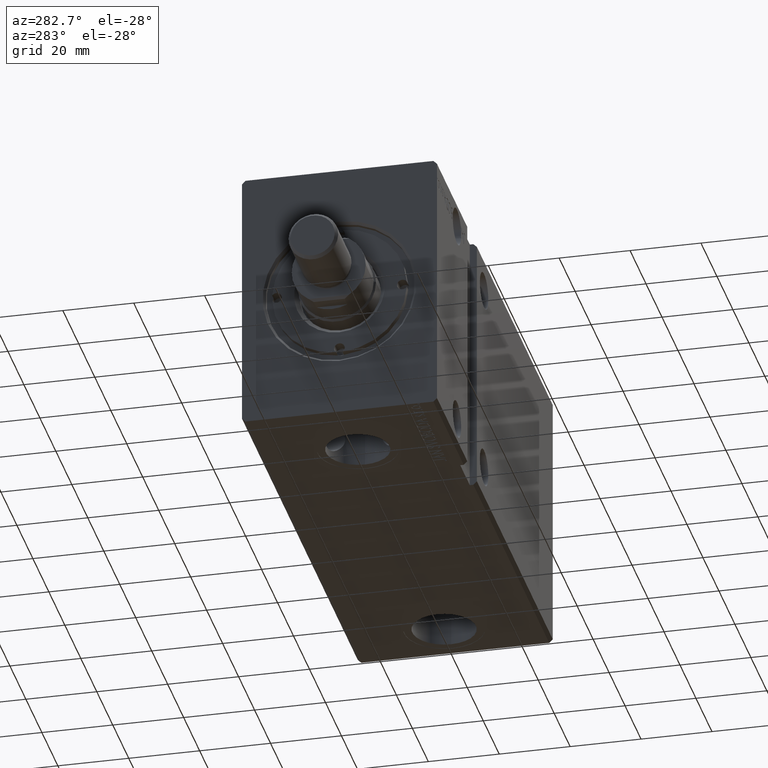
[diagram: clean part render]
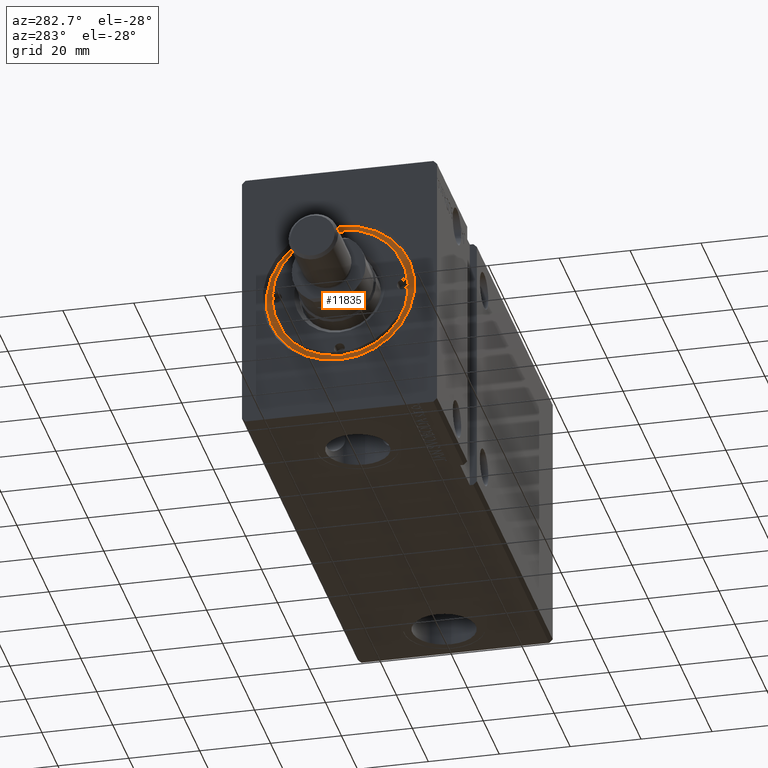
[diagram: same view with one face highlighted and labeled with its STEP entity id]
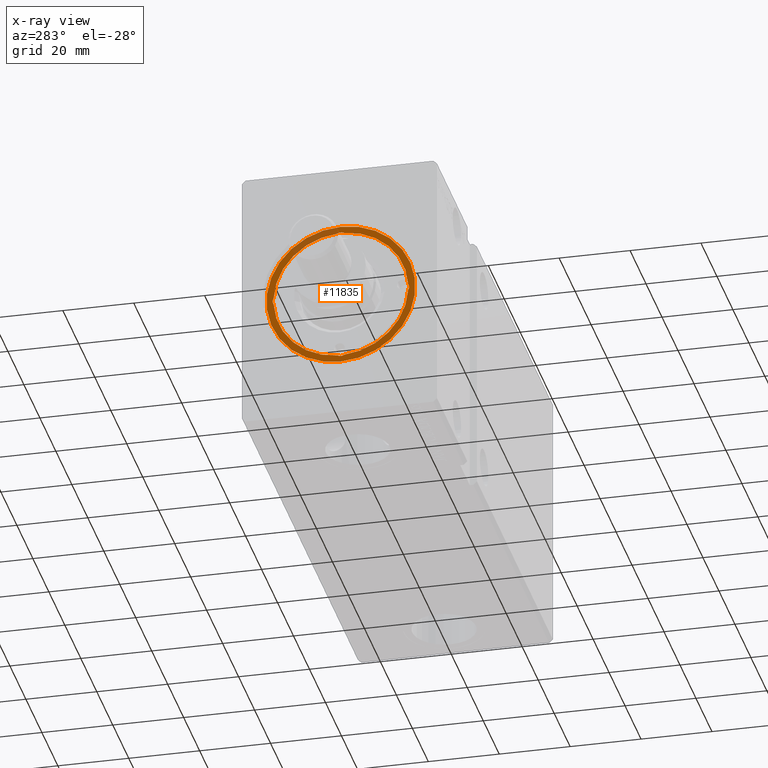
[diagram: x-ray of the same camera — body ghosted, the highlighted face saturated]
A machine part, auxiliary view. The second image highlights one B-rep face of the part: STEP entity #11835.
The next image is the same camera in x-ray: the body ghosted, the highlighted face saturated — about 11% of this face is hidden behind the body in this view.
In plain terms, the highlighted planar face has unit normal (-1, 0, 0).
Its self-contained STEP definition (entity closure, byte-faithful):
#230 = VERTEX_POINT ( 'NONE', #5184 ) ;
#501 = AXIS2_PLACEMENT_3D ( 'NONE', #7721, #8510, #11138 ) ;
#576 = AXIS2_PLACEMENT_3D ( 'NONE', #13906, #8258, #1399 ) ;
#1134 = DIRECTION ( 'NONE',  ( 1.000000000000000000, 0.000000000000000000, 0.000000000000000000 ) ) ;
#1399 = DIRECTION ( 'NONE',  ( 1.000000000000000000, 0.000000000000000000, -0.000000000000000000 ) ) ;
#2267 = VERTEX_POINT ( 'NONE', #24698 ) ;
#2274 = CIRCLE ( 'NONE', #20948, 21.00000000000000000 ) ;
#2510 = AXIS2_PLACEMENT_3D ( 'NONE', #13652, #38321, #1134 ) ;
#3570 = CARTESIAN_POINT ( 'NONE',  ( -18.98063380281690016, -0.8576365450261759227, 10.00000000000000000 ) ) ;
#4413 = CARTESIAN_POINT ( 'NONE',  ( -0.8576365450261883572, -18.98063380281690016, 10.00000000000000000 ) ) ;
#4491 = DIRECTION ( 'NONE',  ( 0.000000000000000000, 0.000000000000000000, 1.000000000000000000 ) ) ;
#5106 = EDGE_CURVE ( 'NONE', #6022, #30621, #15314, .T. ) ;
#5184 = CARTESIAN_POINT ( 'NONE',  ( -21.00000000000000000, 0.000000000000000000, 10.00000000000000000 ) ) ;
#5224 = CARTESIAN_POINT ( 'NONE',  ( -0.8576365450261766998, 18.98063380281690016, 10.00000000000000000 ) ) ;
#5456 = EDGE_CURVE ( 'NONE', #33972, #2267, #12141, .T. ) ;
#6022 = VERTEX_POINT ( 'NONE', #17647 ) ;
#6041 = AXIS2_PLACEMENT_3D ( 'NONE', #36371, #6270, #24647 ) ;
#6270 = DIRECTION ( 'NONE',  ( 0.000000000000000000, 0.000000000000000000, 1.000000000000000000 ) ) ;
#7172 = ORIENTED_EDGE ( 'NONE', *, *, #27861, .T. ) ;
#7721 = CARTESIAN_POINT ( 'NONE',  ( 0.000000000000000000, 0.000000000000000000, 10.00000000000000000 ) ) ;
#8083 = CIRCLE ( 'NONE', #25480, 19.00000000000000000 ) ;
#8197 = CARTESIAN_POINT ( 'NONE',  ( 0.8576365450261748125, -18.98063380281690016, 10.00000000000000000 ) ) ;
#8258 = DIRECTION ( 'NONE',  ( 0.000000000000000000, 0.000000000000000000, 1.000000000000000000 ) ) ;
#8510 = DIRECTION ( 'NONE',  ( 0.000000000000000000, 0.000000000000000000, 1.000000000000000000 ) ) ;
#8630 = CIRCLE ( 'NONE', #31855, 19.00000000000000000 ) ;
#8894 = AXIS2_PLACEMENT_3D ( 'NONE', #9127, #21234, #27509 ) ;
#9127 = CARTESIAN_POINT ( 'NONE',  ( 0.000000000000000000, 17.75000000000000000, 10.00000000000000000 ) ) ;
#9216 = VERTEX_POINT ( 'NONE', #11147 ) ;
#9377 = VERTEX_POINT ( 'NONE', #22613 ) ;
#10602 = DIRECTION ( 'NONE',  ( 1.000000000000000000, 0.000000000000000000, 0.000000000000000000 ) ) ;
#10838 = CIRCLE ( 'NONE', #501, 21.00000000000000000 ) ;
#11138 = DIRECTION ( 'NONE',  ( 1.000000000000000000, 0.000000000000000000, 0.000000000000000000 ) ) ;
#11147 = CARTESIAN_POINT ( 'NONE',  ( -19.24999999999999645, 1.836970198721027222E-16, 10.00000000000000000 ) ) ;
#11300 = DIRECTION ( 'NONE',  ( 0.000000000000000000, 0.000000000000000000, 1.000000000000000000 ) ) ;
#11696 = DIRECTION ( 'NONE',  ( 0.000000000000000000, 0.000000000000000000, 1.000000000000000000 ) ) ;
#11835 = ADVANCED_FACE ( 'NONE', ( #32100, #14502 ), #29675, .T. ) ;
#11841 = ORIENTED_EDGE ( 'NONE', *, *, #35560, .T. ) ;
#11869 = EDGE_CURVE ( 'NONE', #9216, #18587, #36697, .T. ) ;
#12051 = ORIENTED_EDGE ( 'NONE', *, *, #33370, .F. ) ;
#12141 = CIRCLE ( 'NONE', #17267, 1.499999999999997780 ) ;
#12390 = ORIENTED_EDGE ( 'NONE', *, *, #21143, .F. ) ;
#13198 = CARTESIAN_POINT ( 'NONE',  ( 19.24999999999999645, 0.000000000000000000, 10.00000000000000000 ) ) ;
#13282 = ORIENTED_EDGE ( 'NONE', *, *, #26358, .F. ) ;
#13652 = CARTESIAN_POINT ( 'NONE',  ( 0.000000000000000000, 0.000000000000000000, 10.00000000000000000 ) ) ;
#13906 = CARTESIAN_POINT ( 'NONE',  ( 0.000000000000000000, 0.000000000000000000, 10.00000000000000000 ) ) ;
#14436 = ORIENTED_EDGE ( 'NONE', *, *, #5106, .F. ) ;
#14502 = FACE_OUTER_BOUND ( 'NONE', #23835, .T. ) ;
#14632 = EDGE_LOOP ( 'NONE', ( #21698, #24930, #14436, #12390, #28737, #12051, #19723, #13282, #34606, #27959 ) ) ;
#15122 = AXIS2_PLACEMENT_3D ( 'NONE', #18746, #25025, #18550 ) ;
#15314 = CIRCLE ( 'NONE', #8894, 1.499999999999996891 ) ;
#15778 = CARTESIAN_POINT ( 'NONE',  ( 17.75000000000000000, 0.000000000000000000, 10.00000000000000000 ) ) ;
#16318 = CIRCLE ( 'NONE', #6041, 1.499999999999997780 ) ;
#16366 = DIRECTION ( 'NONE',  ( 1.000000000000000000, 0.000000000000000000, 0.000000000000000000 ) ) ;
#17267 = AXIS2_PLACEMENT_3D ( 'NONE', #39585, #11696, #18143 ) ;
#17647 = CARTESIAN_POINT ( 'NONE',  ( 0.8576365450261883572, 18.98063380281690016, 10.00000000000000000 ) ) ;
#17763 = CARTESIAN_POINT ( 'NONE',  ( 18.98063380281690016, -0.8576365450261883572, 10.00000000000000000 ) ) ;
#18143 = DIRECTION ( 'NONE',  ( 1.000000000000000000, 0.000000000000000000, 0.000000000000000000 ) ) ;
#18550 = DIRECTION ( 'NONE',  ( 1.000000000000000000, 0.000000000000000000, 0.000000000000000000 ) ) ;
#18587 = VERTEX_POINT ( 'NONE', #3570 ) ;
#18746 = CARTESIAN_POINT ( 'NONE',  ( 0.000000000000000000, -17.75000000000000000, 10.00000000000000000 ) ) ;
#18996 = DIRECTION ( 'NONE',  ( 0.000000000000000000, 0.000000000000000000, 1.000000000000000000 ) ) ;
#19239 = AXIS2_PLACEMENT_3D ( 'NONE', #23605, #26045, #32898 ) ;
#19383 = EDGE_CURVE ( 'NONE', #36953, #9216, #16318, .T. ) ;
#19723 = ORIENTED_EDGE ( 'NONE', *, *, #31474, .F. ) ;
#19908 = CIRCLE ( 'NONE', #2510, 19.00000000000000000 ) ;
#20948 = AXIS2_PLACEMENT_3D ( 'NONE', #39389, #11300, #35758 ) ;
#21062 = CIRCLE ( 'NONE', #34615, 1.499999999999997780 ) ;
#21143 = EDGE_CURVE ( 'NONE', #2267, #6022, #8630, .T. ) ;
#21234 = DIRECTION ( 'NONE',  ( 0.000000000000000000, 0.000000000000000000, 1.000000000000000000 ) ) ;
#21698 = ORIENTED_EDGE ( 'NONE', *, *, #19383, .F. ) ;
#22613 = CARTESIAN_POINT ( 'NONE',  ( 21.00000000000000000, 2.571758278209441661E-15, 10.00000000000000000 ) ) ;
#23519 = CARTESIAN_POINT ( 'NONE',  ( 0.000000000000000000, 0.000000000000000000, 10.00000000000000000 ) ) ;
#23605 = CARTESIAN_POINT ( 'NONE',  ( -17.75000000000000000, 0.000000000000000000, 10.00000000000000000 ) ) ;
#23640 = CIRCLE ( 'NONE', #37197, 19.00000000000000000 ) ;
#23835 = EDGE_LOOP ( 'NONE', ( #11841, #7172 ) ) ;
#24180 = EDGE_CURVE ( 'NONE', #18587, #28800, #8083, .T. ) ;
#24647 = DIRECTION ( 'NONE',  ( 1.000000000000000000, 0.000000000000000000, 0.000000000000000000 ) ) ;
#24698 = CARTESIAN_POINT ( 'NONE',  ( 18.98063380281690016, 0.8576365450261821399, 10.00000000000000000 ) ) ;
#24930 = ORIENTED_EDGE ( 'NONE', *, *, #38707, .F. ) ;
#25004 = CARTESIAN_POINT ( 'NONE',  ( 0.000000000000000000, 0.000000000000000000, 10.00000000000000000 ) ) ;
#25025 = DIRECTION ( 'NONE',  ( 0.000000000000000000, 0.000000000000000000, 1.000000000000000000 ) ) ;
#25480 = AXIS2_PLACEMENT_3D ( 'NONE', #25004, #31060, #37334 ) ;
#26045 = DIRECTION ( 'NONE',  ( 0.000000000000000000, 0.000000000000000000, 1.000000000000000000 ) ) ;
#26358 = EDGE_CURVE ( 'NONE', #28800, #30939, #29950, .T. ) ;
#27509 = DIRECTION ( 'NONE',  ( 1.000000000000000000, 0.000000000000000000, 0.000000000000000000 ) ) ;
#27861 = EDGE_CURVE ( 'NONE', #9377, #230, #2274, .T. ) ;
#27959 = ORIENTED_EDGE ( 'NONE', *, *, #11869, .F. ) ;
#28313 = DIRECTION ( 'NONE',  ( 1.000000000000000000, 0.000000000000000000, 0.000000000000000000 ) ) ;
#28506 = CARTESIAN_POINT ( 'NONE',  ( 0.000000000000000000, 0.000000000000000000, 10.00000000000000000 ) ) ;
#28737 = ORIENTED_EDGE ( 'NONE', *, *, #5456, .F. ) ;
#28800 = VERTEX_POINT ( 'NONE', #4413 ) ;
#29675 = PLANE ( 'NONE',  #576 ) ;
#29950 = CIRCLE ( 'NONE', #15122, 1.499999999999996891 ) ;
#29974 = CARTESIAN_POINT ( 'NONE',  ( -18.98063380281690016, 0.8576365450261883572, 10.00000000000000000 ) ) ;
#30229 = VERTEX_POINT ( 'NONE', #17763 ) ;
#30621 = VERTEX_POINT ( 'NONE', #5224 ) ;
#30939 = VERTEX_POINT ( 'NONE', #8197 ) ;
#31060 = DIRECTION ( 'NONE',  ( 0.000000000000000000, 0.000000000000000000, 1.000000000000000000 ) ) ;
#31474 = EDGE_CURVE ( 'NONE', #30939, #30229, #23640, .T. ) ;
#31855 = AXIS2_PLACEMENT_3D ( 'NONE', #23519, #38290, #10602 ) ;
#32100 = FACE_BOUND ( 'NONE', #14632, .T. ) ;
#32898 = DIRECTION ( 'NONE',  ( 1.000000000000000000, 0.000000000000000000, 0.000000000000000000 ) ) ;
#33370 = EDGE_CURVE ( 'NONE', #30229, #33972, #21062, .T. ) ;
#33972 = VERTEX_POINT ( 'NONE', #13198 ) ;
#34606 = ORIENTED_EDGE ( 'NONE', *, *, #24180, .F. ) ;
#34615 = AXIS2_PLACEMENT_3D ( 'NONE', #15778, #18996, #28313 ) ;
#35560 = EDGE_CURVE ( 'NONE', #230, #9377, #10838, .T. ) ;
#35758 = DIRECTION ( 'NONE',  ( 1.000000000000000000, 0.000000000000000000, 0.000000000000000000 ) ) ;
#36371 = CARTESIAN_POINT ( 'NONE',  ( -17.75000000000000000, 0.000000000000000000, 10.00000000000000000 ) ) ;
#36697 = CIRCLE ( 'NONE', #19239, 1.499999999999997780 ) ;
#36953 = VERTEX_POINT ( 'NONE', #29974 ) ;
#37197 = AXIS2_PLACEMENT_3D ( 'NONE', #28506, #4491, #16366 ) ;
#37334 = DIRECTION ( 'NONE',  ( 1.000000000000000000, 0.000000000000000000, 0.000000000000000000 ) ) ;
#38290 = DIRECTION ( 'NONE',  ( 0.000000000000000000, 0.000000000000000000, 1.000000000000000000 ) ) ;
#38321 = DIRECTION ( 'NONE',  ( 0.000000000000000000, 0.000000000000000000, 1.000000000000000000 ) ) ;
#38707 = EDGE_CURVE ( 'NONE', #30621, #36953, #19908, .T. ) ;
#39389 = CARTESIAN_POINT ( 'NONE',  ( 0.000000000000000000, 0.000000000000000000, 10.00000000000000000 ) ) ;
#39585 = CARTESIAN_POINT ( 'NONE',  ( 17.75000000000000000, 0.000000000000000000, 10.00000000000000000 ) ) ;